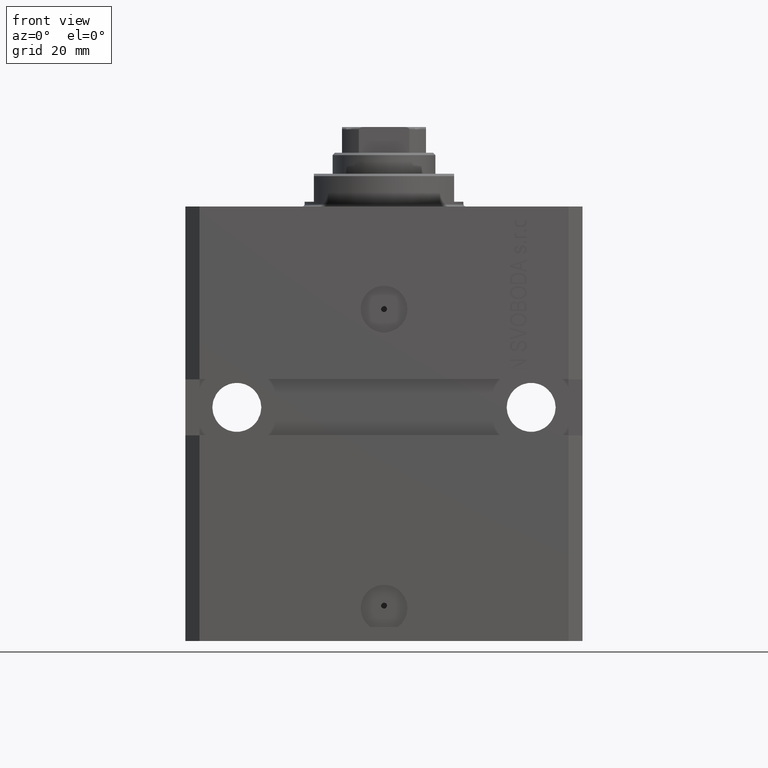
[diagram: clean part render]
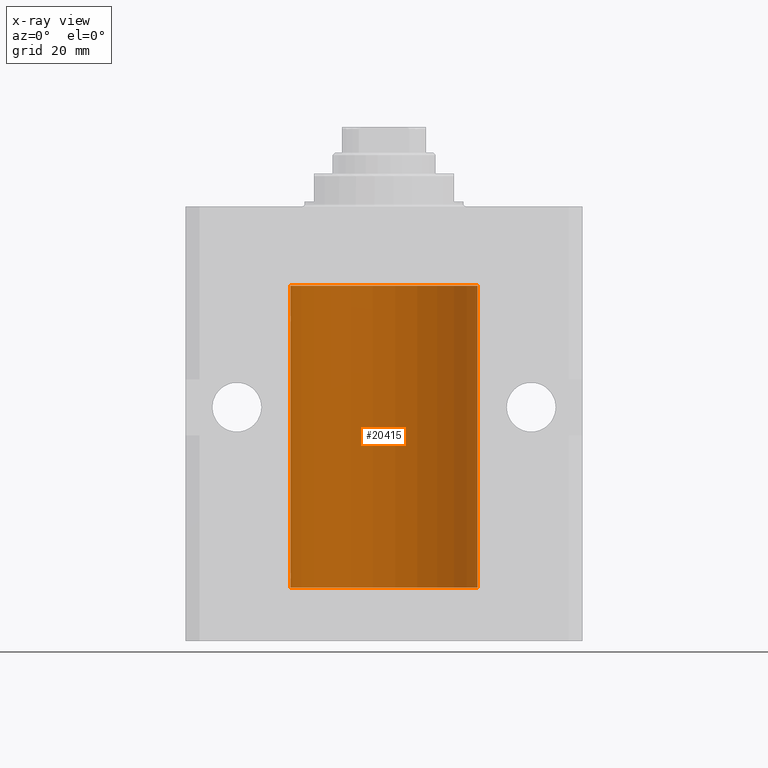
[diagram: x-ray — body ghosted, one internal face saturated and labeled with its STEP entity id]
A machine part, front view, then the same camera in x-ray: the body is ghosted and one INTERNAL B-rep face — a face not visible from any outside direction — is saturated and labeled: STEP entity #20415.
In plain terms, the highlighted cylindrical surface (partial cylindrical patch) has radius 20 mm, axis along (0, 0, 1).
Its self-contained STEP definition (entity closure, byte-faithful):
#783 = DIRECTION ( 'NONE',  ( -0.000000000000000000, -0.000000000000000000, 1.000000000000000000 ) ) ;
#821 = CARTESIAN_POINT ( 'NONE',  ( -19.99638934703457238, 0.3843678041337651452, -78.50046362978099523 ) ) ;
#1142 = DIRECTION ( 'NONE',  ( 1.000000000000000000, 0.000000000000000000, 0.000000000000000000 ) ) ;
#4169 = ORIENTED_EDGE ( 'NONE', *, *, #22489, .T. ) ;
#4668 = EDGE_CURVE ( 'NONE', #42281, #30164, #44270, .T. ) ;
#4832 = EDGE_CURVE ( 'NONE', #41944, #30164, #12926, .T. ) ;
#6269 = VECTOR ( 'NONE', #22364, 1000.000000000000000 ) ;
#6707 = CARTESIAN_POINT ( 'NONE',  ( -19.99638934703457593, 0.3843678041337688644, -23.50046362978100944 ) ) ;
#6844 = AXIS2_PLACEMENT_3D ( 'NONE', #41774, #8825, #38159 ) ;
#7180 = CARTESIAN_POINT ( 'NONE',  ( -20.00000000000000355, 0.1631688615953343080, -79.62499999999984368 ) ) ;
#7193 = LINE ( 'NONE', #43744, #40830 ) ;
#8285 = CARTESIAN_POINT ( 'NONE',  ( -19.99947377218718003, 0.1636439183262797525, -78.39126364004653169 ) ) ;
#8825 = DIRECTION ( 'NONE',  ( 0.000000000000000000, 0.000000000000000000, 1.000000000000000000 ) ) ;
#9355 = ORIENTED_EDGE ( 'NONE', *, *, #22467, .T. ) ;
#9526 = VERTEX_POINT ( 'NONE', #47341 ) ;
#10791 = CARTESIAN_POINT ( 'NONE',  ( -19.99769349528941831, 0.3253804398728615266, -79.55855820727680339 ) ) ;
#10865 = DIRECTION ( 'NONE',  ( -0.000000000000000000, -0.000000000000000000, 1.000000000000000000 ) ) ;
#11325 = CARTESIAN_POINT ( 'NONE',  ( -20.00000000000000000, 2.449293598294706513E-15, -81.59999999999999432 ) ) ;
#11688 = CARTESIAN_POINT ( 'NONE',  ( -20.00000000000000000, 2.449293598294706513E-15, -17.00000000000000000 ) ) ;
#11974 = CIRCLE ( 'NONE', #25804, 20.00000000000000000 ) ;
#12090 = CARTESIAN_POINT ( 'NONE',  ( -20.00000000000000000, 2.449293598294706513E-15, -81.59999999999999432 ) ) ;
#12673 = AXIS2_PLACEMENT_3D ( 'NONE', #32555, #47245, #22197 ) ;
#12712 = ORIENTED_EDGE ( 'NONE', *, *, #26812, .T. ) ;
#12926 = B_SPLINE_CURVE_WITH_KNOTS ( 'NONE', 3,
 ( #31945, #28337, #43023, #17526, #6707, #32422, #32182, #46881, #13928, #36031, #47114, #17768 ),
 .UNSPECIFIED., .F., .F.,
 ( 4, 2, 2, 2, 2, 4 ),
 ( 5.848927291235706941E-19, 0.0002442693137305304075, 0.0004885386274610601645, 0.0009770772549221123059, 0.001465615882383164339, 0.001954154509844215938 ),
 .UNSPECIFIED. ) ;
#13928 = CARTESIAN_POINT ( 'NONE',  ( -19.99253506710754991, 0.5587120480776751608, -24.32511620830248589 ) ) ;
#14056 = CARTESIAN_POINT ( 'NONE',  ( -20.00000000000000000, -1.124177324826063808E-14, -78.37500000000000000 ) ) ;
#14762 = VERTEX_POINT ( 'NONE', #20385 ) ;
#17526 = CARTESIAN_POINT ( 'NONE',  ( -19.99766197842594906, 0.3150331617867667688, -23.45402070102505476 ) ) ;
#17767 = CARTESIAN_POINT ( 'NONE',  ( -19.99999999999999289, 0.08259581631026131909, -78.37499999999998579 ) ) ;
#17768 = CARTESIAN_POINT ( 'NONE',  ( -20.00000000000010303, 3.580159278407742946E-13, -24.62500000000332889 ) ) ;
#18232 = CARTESIAN_POINT ( 'NONE',  ( -19.99766197842594551, 0.3150331617867603295, -78.45402070102504410 ) ) ;
#18557 = ORIENTED_EDGE ( 'NONE', *, *, #41671, .F. ) ;
#20118 = CARTESIAN_POINT ( 'NONE',  ( -20.00000000000000000, 2.449293598294706513E-15, -81.59999999999999432 ) ) ;
#20385 = CARTESIAN_POINT ( 'NONE',  ( -20.00000000000010303, 3.580159286679549072E-13, -79.62500000000332534 ) ) ;
#20415 = ADVANCED_FACE ( 'NONE', ( #47010 ), #29414, .F. ) ;
#20910 = CARTESIAN_POINT ( 'NONE',  ( 20.00000000000000000, 0.000000000000000000, -17.00000000000000000 ) ) ;
#21483 = ORIENTED_EDGE ( 'NONE', *, *, #4668, .F. ) ;
#21617 = ORIENTED_EDGE ( 'NONE', *, *, #35142, .F. ) ;
#22197 = DIRECTION ( 'NONE',  ( 1.000000000000000000, 0.000000000000000000, 0.000000000000000000 ) ) ;
#22364 = DIRECTION ( 'NONE',  ( -0.000000000000000000, -0.000000000000000000, 1.000000000000000000 ) ) ;
#22467 = EDGE_CURVE ( 'NONE', #9526, #23669, #29113, .T. ) ;
#22489 = EDGE_CURVE ( 'NONE', #23669, #42096, #11974, .T. ) ;
#22939 = CARTESIAN_POINT ( 'NONE',  ( -19.99253506710754991, 0.5587120480776742726, -79.32511620830248944 ) ) ;
#23024 = EDGE_CURVE ( 'NONE', #45759, #14762, #33962, .T. ) ;
#23669 = VERTEX_POINT ( 'NONE', #20910 ) ;
#25263 = CIRCLE ( 'NONE', #6844, 20.00000000000000000 ) ;
#25804 = AXIS2_PLACEMENT_3D ( 'NONE', #25991, #34085, #1142 ) ;
#25991 = CARTESIAN_POINT ( 'NONE',  ( 0.000000000000000000, 0.000000000000000000, -17.00000000000000000 ) ) ;
#26812 = EDGE_CURVE ( 'NONE', #42281, #14762, #45355, .T. ) ;
#27343 = VECTOR ( 'NONE', #783, 1000.000000000000000 ) ;
#28337 = CARTESIAN_POINT ( 'NONE',  ( -19.99999999999999645, 0.08259581631026780002, -23.37500000000000000 ) ) ;
#29113 = LINE ( 'NONE', #44286, #41146 ) ;
#29414 = CYLINDRICAL_SURFACE ( 'NONE', #12673, 20.00000000000000000 ) ;
#29532 = DIRECTION ( 'NONE',  ( -0.000000000000000000, -0.000000000000000000, 1.000000000000000000 ) ) ;
#30152 = CARTESIAN_POINT ( 'NONE',  ( -19.99023380173166231, 0.6249420416828449509, -78.83670793056396064 ) ) ;
#30164 = VERTEX_POINT ( 'NONE', #43095 ) ;
#31945 = CARTESIAN_POINT ( 'NONE',  ( -20.00000000000000000, -2.867584836844214272E-15, -23.37500000000000000 ) ) ;
#32182 = CARTESIAN_POINT ( 'NONE',  ( -19.99023380173166231, 0.6249420416828462832, -23.83670793056396064 ) ) ;
#32421 = CARTESIAN_POINT ( 'NONE',  ( -20.00000000000010303, 3.580159286679549072E-13, -79.62500000000332534 ) ) ;
#32422 = CARTESIAN_POINT ( 'NONE',  ( -19.99256581701871482, 0.5573276956902001311, -23.67348565770948809 ) ) ;
#32555 = CARTESIAN_POINT ( 'NONE',  ( 0.000000000000000000, 0.000000000000000000, -81.59999999999999432 ) ) ;
#33756 = CARTESIAN_POINT ( 'NONE',  ( -20.00000000000000000, -1.124177324826063808E-14, -78.37500000000000000 ) ) ;
#33962 = LINE ( 'NONE', #12090, #27343 ) ;
#34085 = DIRECTION ( 'NONE',  ( 0.000000000000000000, 0.000000000000000000, 1.000000000000000000 ) ) ;
#34690 = EDGE_LOOP ( 'NONE', ( #45818, #21617, #9355, #4169, #18557, #44312, #21483, #12712 ) ) ;
#35142 = EDGE_CURVE ( 'NONE', #9526, #45759, #25263, .T. ) ;
#36031 = CARTESIAN_POINT ( 'NONE',  ( -19.99769349528941120, 0.3253804398728645242, -24.55855820727680339 ) ) ;
#38159 = DIRECTION ( 'NONE',  ( 1.000000000000000000, 0.000000000000000000, 0.000000000000000000 ) ) ;
#39128 = CARTESIAN_POINT ( 'NONE',  ( -20.00000000000000000, -2.867584836844214272E-15, -23.37500000000000000 ) ) ;
#40362 = CARTESIAN_POINT ( 'NONE',  ( -19.99256581701871838, 0.5573276956901996870, -78.67348565770949165 ) ) ;
#40830 = VECTOR ( 'NONE', #29532, 1000.000000000000000 ) ;
#41146 = VECTOR ( 'NONE', #10865, 1000.000000000000000 ) ;
#41671 = EDGE_CURVE ( 'NONE', #41944, #42096, #7193, .T. ) ;
#41774 = CARTESIAN_POINT ( 'NONE',  ( 0.000000000000000000, 0.000000000000000000, -81.59999999999999432 ) ) ;
#41944 = VERTEX_POINT ( 'NONE', #39128 ) ;
#42096 = VERTEX_POINT ( 'NONE', #11688 ) ;
#42281 = VERTEX_POINT ( 'NONE', #14056 ) ;
#43023 = CARTESIAN_POINT ( 'NONE',  ( -19.99947377218718714, 0.1636439183262877461, -23.39126364004656011 ) ) ;
#43095 = CARTESIAN_POINT ( 'NONE',  ( -20.00000000000010303, 3.580159278407742946E-13, -24.62500000000332889 ) ) ;
#43744 = CARTESIAN_POINT ( 'NONE',  ( -20.00000000000000000, 2.449293598294706513E-15, -81.59999999999999432 ) ) ;
#44270 = LINE ( 'NONE', #11325, #6269 ) ;
#44286 = CARTESIAN_POINT ( 'NONE',  ( 20.00000000000000000, 0.000000000000000000, -81.59999999999999432 ) ) ;
#44312 = ORIENTED_EDGE ( 'NONE', *, *, #4832, .T. ) ;
#44846 = CARTESIAN_POINT ( 'NONE',  ( -19.99023018003212471, 0.6250578794725522025, -79.16284809704971792 ) ) ;
#45355 = B_SPLINE_CURVE_WITH_KNOTS ( 'NONE', 3,
 ( #33756, #17767, #8285, #18232, #821, #40362, #30152, #44846, #22939, #10791, #7180, #32421 ),
 .UNSPECIFIED., .F., .F.,
 ( 4, 2, 2, 2, 2, 4 ),
 ( 1.522880481566060999E-18, 0.0002442693137305179392, 0.0004885386274610343605, 0.0009770772549220966934, 0.001465615882383158918, 0.001954154509844221576 ),
 .UNSPECIFIED. ) ;
#45759 = VERTEX_POINT ( 'NONE', #20118 ) ;
#45818 = ORIENTED_EDGE ( 'NONE', *, *, #23024, .F. ) ;
#46881 = CARTESIAN_POINT ( 'NONE',  ( -19.99023018003212471, 0.6250578794725500931, -24.16284809704970371 ) ) ;
#47010 = FACE_OUTER_BOUND ( 'NONE', #34690, .T. ) ;
#47114 = CARTESIAN_POINT ( 'NONE',  ( -20.00000000000000000, 0.1631688615953320320, -24.62499999999985434 ) ) ;
#47245 = DIRECTION ( 'NONE',  ( -0.000000000000000000, -0.000000000000000000, 1.000000000000000000 ) ) ;
#47341 = CARTESIAN_POINT ( 'NONE',  ( 20.00000000000000000, 0.000000000000000000, -81.59999999999999432 ) ) ;